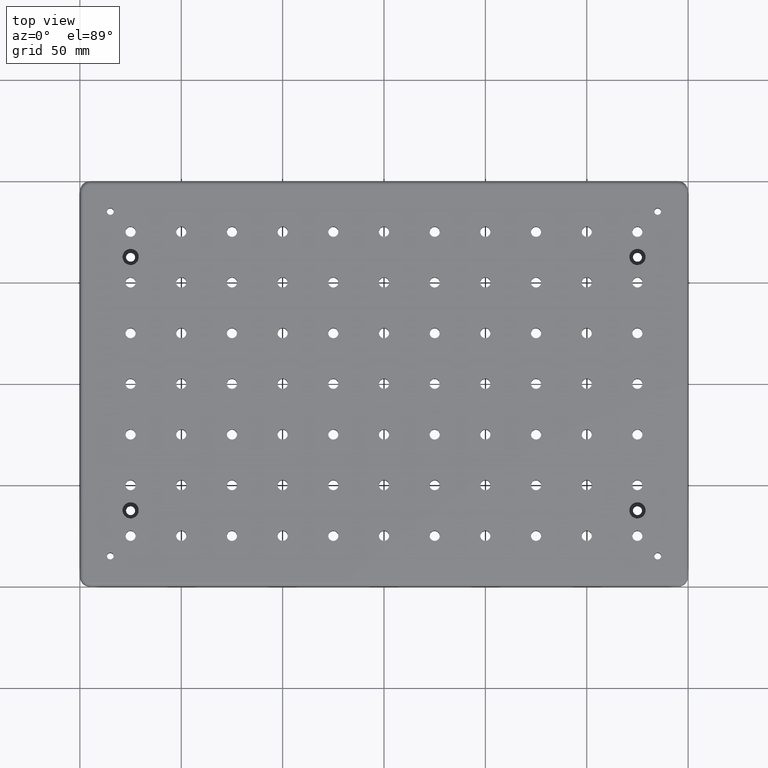
[diagram: clean part render]
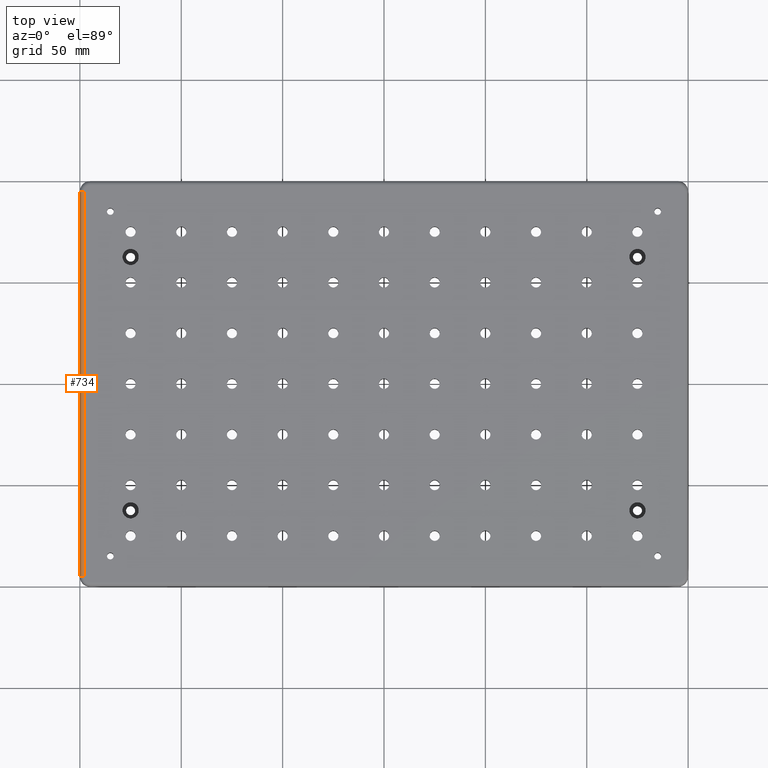
[diagram: same view with one face highlighted and labeled with its STEP entity id]
A machine part, top view. The second image highlights one B-rep face of the part: STEP entity #734.
In plain terms, the highlighted cylindrical surface (edge-blend (fillet) strip) has radius 2 mm, axis along (0, 1, 0).
Its self-contained STEP definition (entity closure, byte-faithful):
#161 = VECTOR ( 'NONE', #4990, 1000.000000000000000 ) ;
#296 = CARTESIAN_POINT ( 'NONE',  ( -149.9999999999999700, -95.00000000000011400, -2.000000000000003600 ) ) ;
#514 = LINE ( 'NONE', #6160, #161 ) ;
#715 = DIRECTION ( 'NONE',  ( 0.0000000000000000000, -1.000000000000000000, 0.0000000000000000000 ) ) ;
#734 = ADVANCED_FACE ( 'NONE', ( #1704 ), #5893, .T. ) ;
#795 = EDGE_CURVE ( 'NONE', #4478, #5638, #7233, .T. ) ;
#1032 = DIRECTION ( 'NONE',  ( -0.0000000000000000000, 1.000000000000000000, -0.0000000000000000000 ) ) ;
#1049 = CIRCLE ( 'NONE', #7069, 2.000000000000000000 ) ;
#1704 = FACE_OUTER_BOUND ( 'NONE', #2871, .T. ) ;
#1950 = ORIENTED_EDGE ( 'NONE', *, *, #795, .F. ) ;
#2597 = DIRECTION ( 'NONE',  ( 0.0000000000000000000, 0.0000000000000000000, -1.000000000000000000 ) ) ;
#2646 = VERTEX_POINT ( 'NONE', #4474 ) ;
#2788 = ORIENTED_EDGE ( 'NONE', *, *, #7079, .F. ) ;
#2871 = EDGE_LOOP ( 'NONE', ( #7220, #4745, #1950, #2788 ) ) ;
#2924 = LINE ( 'NONE', #6714, #5435 ) ;
#2963 = DIRECTION ( 'NONE',  ( 0.0000000000000000000, 0.0000000000000000000, 1.000000000000000000 ) ) ;
#3002 = EDGE_CURVE ( 'NONE', #2646, #6367, #1049, .T. ) ;
#4166 = DIRECTION ( 'NONE',  ( 0.0000000000000000000, -1.000000000000000000, 0.0000000000000000000 ) ) ;
#4236 = CARTESIAN_POINT ( 'NONE',  ( -147.9999999999999700, 95.00000000000011400, -2.000000000000000000 ) ) ;
#4344 = CARTESIAN_POINT ( 'NONE',  ( -149.9999999999999700, 95.00000000000011400, -2.000000000000001800 ) ) ;
#4474 = CARTESIAN_POINT ( 'NONE',  ( -147.9999999999999700, 95.00000000000011400, 0.0000000000000000000 ) ) ;
#4478 = VERTEX_POINT ( 'NONE', #6596 ) ;
#4545 = CARTESIAN_POINT ( 'NONE',  ( -147.9999999999999700, 95.00000000000011400, -2.000000000000000000 ) ) ;
#4672 = DIRECTION ( 'NONE',  ( 0.0000000000000000000, 0.0000000000000000000, -1.000000000000000000 ) ) ;
#4745 = ORIENTED_EDGE ( 'NONE', *, *, #4943, .F. ) ;
#4943 = EDGE_CURVE ( 'NONE', #5638, #6367, #2924, .T. ) ;
#4990 = DIRECTION ( 'NONE',  ( 0.0000000000000000000, -1.000000000000000000, 0.0000000000000000000 ) ) ;
#5330 = CARTESIAN_POINT ( 'NONE',  ( -147.9999999999999700, -95.00000000000011400, -2.000000000000000000 ) ) ;
#5435 = VECTOR ( 'NONE', #1032, 1000.000000000000000 ) ;
#5638 = VERTEX_POINT ( 'NONE', #296 ) ;
#5664 = AXIS2_PLACEMENT_3D ( 'NONE', #5330, #715, #4672 ) ;
#5893 = CYLINDRICAL_SURFACE ( 'NONE', #6819, 2.000000000000000000 ) ;
#6160 = CARTESIAN_POINT ( 'NONE',  ( -147.9999999999999700, -95.00000000000011400, 0.0000000000000000000 ) ) ;
#6367 = VERTEX_POINT ( 'NONE', #4344 ) ;
#6443 = DIRECTION ( 'NONE',  ( 0.0000000000000000000, 1.000000000000000000, 0.0000000000000000000 ) ) ;
#6596 = CARTESIAN_POINT ( 'NONE',  ( -147.9999999999999700, -95.00000000000011400, 0.0000000000000000000 ) ) ;
#6714 = CARTESIAN_POINT ( 'NONE',  ( -149.9999999999999700, 95.00000000000011400, -2.000000000000000000 ) ) ;
#6819 = AXIS2_PLACEMENT_3D ( 'NONE', #4545, #6443, #2963 ) ;
#7069 = AXIS2_PLACEMENT_3D ( 'NONE', #4236, #4166, #2597 ) ;
#7079 = EDGE_CURVE ( 'NONE', #2646, #4478, #514, .T. ) ;
#7220 = ORIENTED_EDGE ( 'NONE', *, *, #3002, .T. ) ;
#7233 = CIRCLE ( 'NONE', #5664, 2.000000000000000000 ) ;